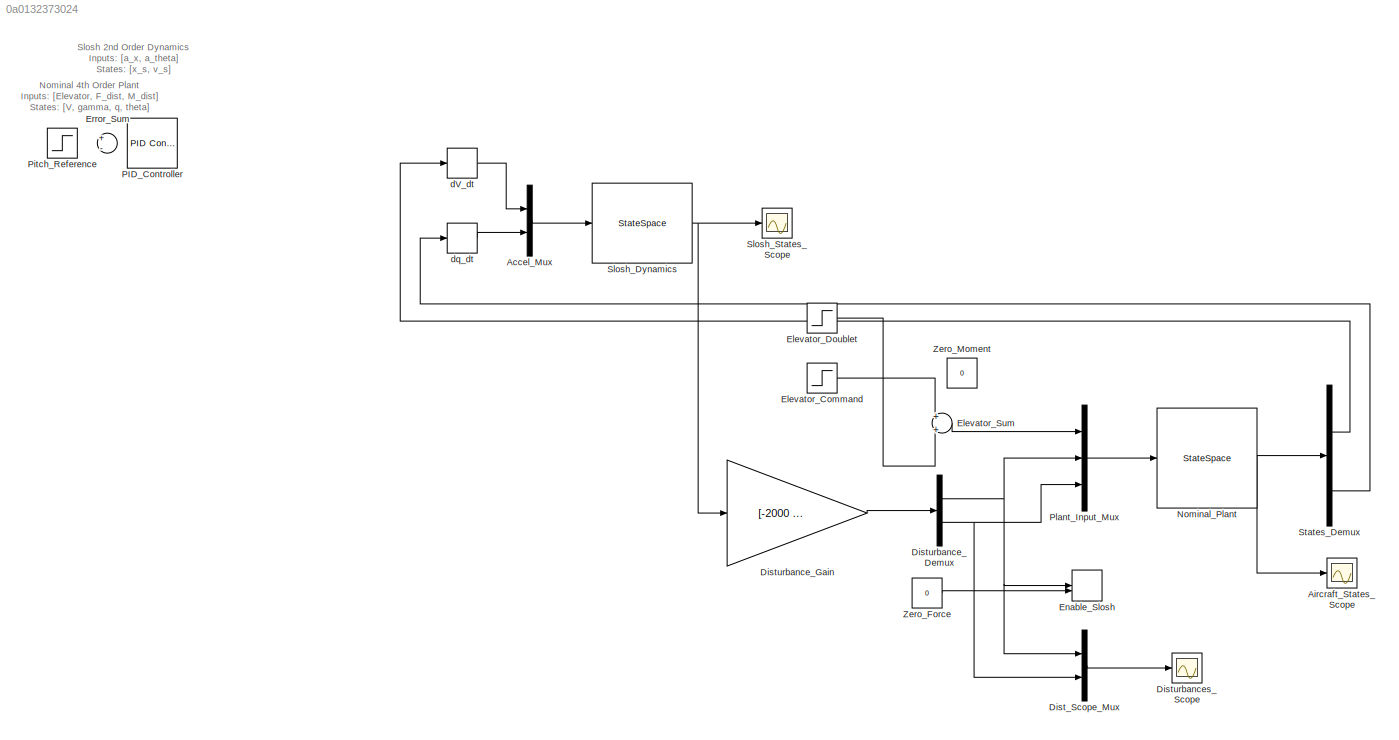
MODEL slx_0a0132373024
KIND model
CONFIG AbsTol = auto
CONFIG EnableMultiTasking = off
CONFIG FixedStep = auto
CONFIG MaxStep = auto
CONFIG MinStep = auto
CONFIG RelTol = 1e-3
CONFIG SampleTimeConstraint = Unconstrained
CONFIG SolverName = ode45
CONFIG StartTime = 0.0
CONFIG StopTime = 20
BLOCK [Mux] Accel_Mux
  DisplayOption = bar
  Inputs = 2
BLOCK [Scope] Aircraft_States_Scope
  Floating = off
  GraphicalSettings = {"GraphicalSettings":{"LegacySettings":true,"Style":{"Style":{"PlotType":"Auto"}}}}
  NumInputPorts = 1
  WasSavedAsWebScope = on
BLOCK [Mux] Dist_Scope_Mux
  DisplayOption = bar
  Inputs = 2
BLOCK [Demux] Disturbance_Demux
  Outputs = 2
BLOCK [Gain] Disturbance_Gain
  Gain = [-2000 -100;-3000 -150]
  Multiplication = Matrix(K*u)
BLOCK [Scope] Disturbances_Scope
  Floating = off
  GraphicalSettings = {"GraphicalSettings":{"LegacySettings":true,"Style":{"Style":{"PlotType":"Auto"}}}}
  NumInputPorts = 1
  WasSavedAsWebScope = on
BLOCK [Step] Elevator_Command
  After = 0.1
  SampleTime = 0
  Time = 2
BLOCK [Step] Elevator_Doublet
  After = -0.1
  SampleTime = 0
  Time = 3
BLOCK [Sum] Elevator_Sum
BLOCK [ManualSwitch] Enable_Slosh
BLOCK [Sum] Error_Sum
  Inputs = +-
BLOCK [StateSpace] Nominal_Plant
  A = [-0.05 -9.81 0 0;-0.01 0 1 0;0 -0.000327 -0.000133333333333333 0;0 0 1 0]
  B = [0.0002 0.0002 0;0 0 0;-0.000333333333333333 0 6.66666666666667e-05;0 0 0]
  C = [1 0 0 0;0 1 0 0;0 0 1 0;0 0 0 1]
  D = [0 0 0;0 0 0;0 0 0;0 0 0]
  InitialCondition = [0;0.05;0;0.05]
BLOCK [Reference] PID_Controller  REF=slpidlib/PID Controller
  SourceBlock = slpidlib/PID Controller
  SourceType = PID 1dof
BLOCK [Step] Pitch_Reference
  After = 0.1
  SampleTime = 0
BLOCK [Mux] Plant_Input_Mux
  DisplayOption = bar
  Inputs = 3
BLOCK [StateSpace] Slosh_Dynamics
  A = [0 1;-4 -0.2]
  B = [0 0;1 1.5]
  C = [1 0;0 1]
  D = [0 0;0 0]
  InitialCondition = [0.1;0]
BLOCK [Scope] Slosh_States_Scope
  Floating = off
  GraphicalSettings = {"GraphicalSettings":{"LegacySettings":true,"Style":{"Style":{"PlotType":"Auto"}}}}
  NumInputPorts = 1
  WasSavedAsWebScope = on
BLOCK [Demux] States_Demux
BLOCK [Constant] Zero_Force
  Value = 0
BLOCK [Constant] Zero_Moment
  Value = 0
BLOCK [Derivative] dV_dt
BLOCK [Derivative] dq_dt
ANNOTATION (root): Nominal 4th Order Plant\nInputs: [Elevator, F_dist, M_dist]\nStates: [V, gamma, q, theta]
ANNOTATION (root): Slosh 2nd Order Dynamics\nInputs: [a_x, a_theta]\nStates: [x_s, v_s]
LINE Accel_Mux:1 -> Slosh_Dynamics:1
LINE Dist_Scope_Mux:1 -> Disturbances_Scope:1
NET Disturbance_Demux:1 -> Dist_Scope_Mux:1, Enable_Slosh:1, Plant_Input_Mux:2
NET Disturbance_Demux:2 -> Dist_Scope_Mux:2, Plant_Input_Mux:3
LINE Disturbance_Gain:1 -> Disturbance_Demux:1
LINE Elevator_Command:1 -> Elevator_Sum:1
LINE Elevator_Doublet:1 -> Elevator_Sum:2
LINE Elevator_Sum:1 -> Plant_Input_Mux:1
NET Nominal_Plant:1 -> Aircraft_States_Scope:1, States_Demux:1
LINE Plant_Input_Mux:1 -> Nominal_Plant:1
NET Slosh_Dynamics:1 -> Disturbance_Gain:1, Slosh_States_Scope:1
LINE States_Demux:1 -> dV_dt:1
LINE States_Demux:3 -> dq_dt:1
LINE Zero_Force:1 -> Enable_Slosh:2
LINE dV_dt:1 -> Accel_Mux:1
LINE dq_dt:1 -> Accel_Mux:2
note: NET lines group one-source signal fan-out (src -> all destinations, sorted); 1:1 wires keep LINE
